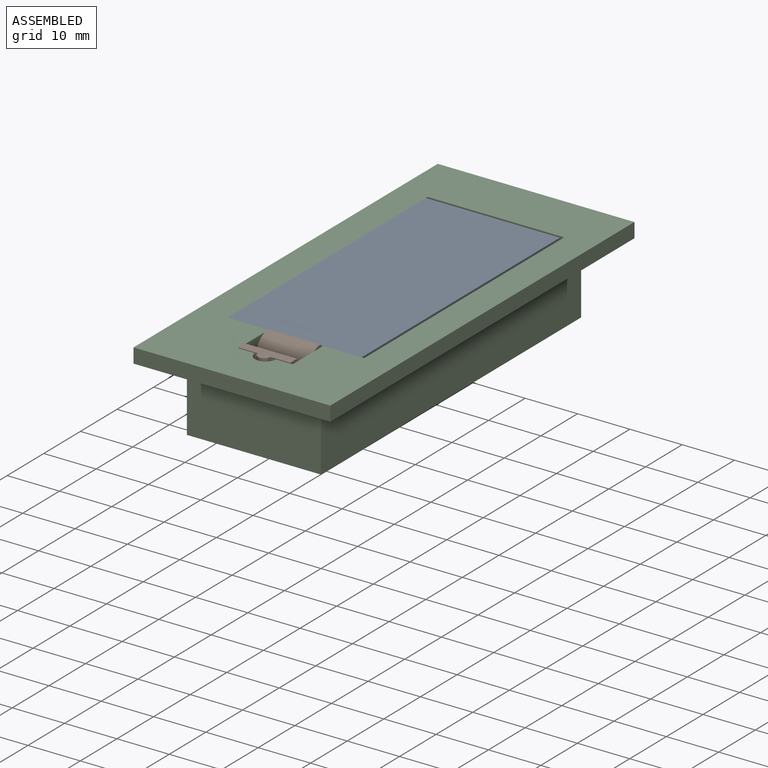
[diagram: assembled view]
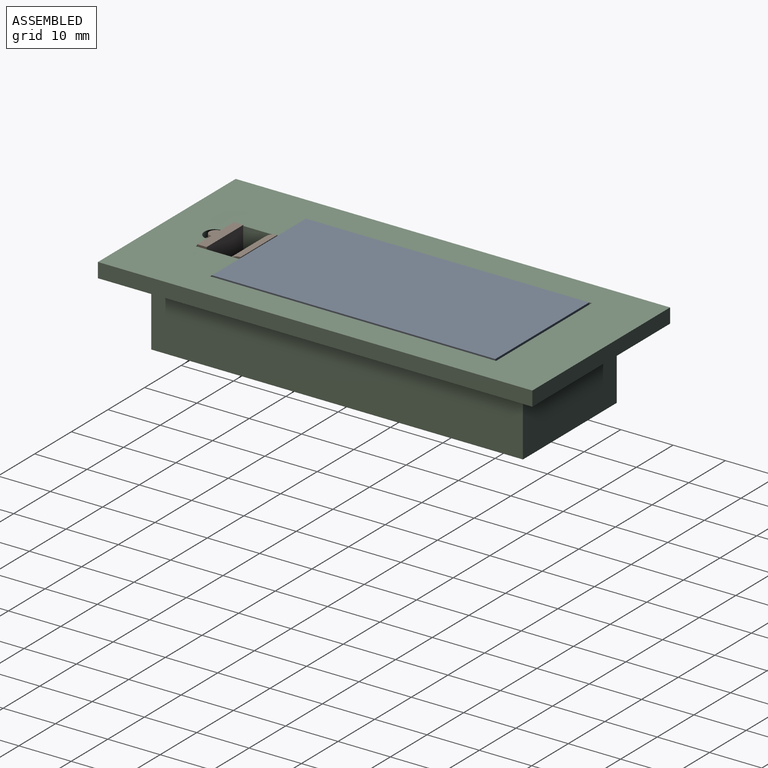
[diagram: assembled view, second angle]
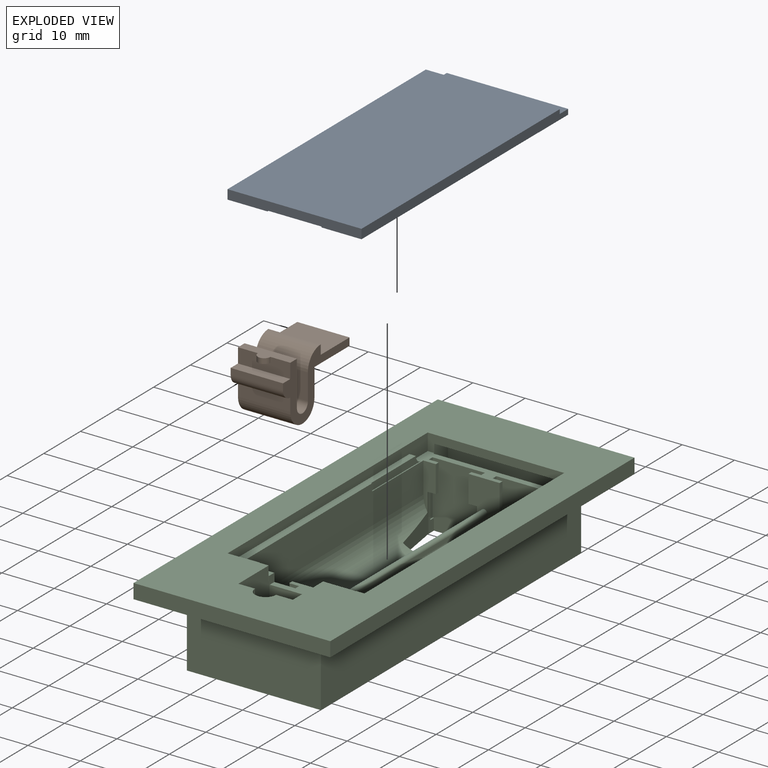
[diagram: exploded view]
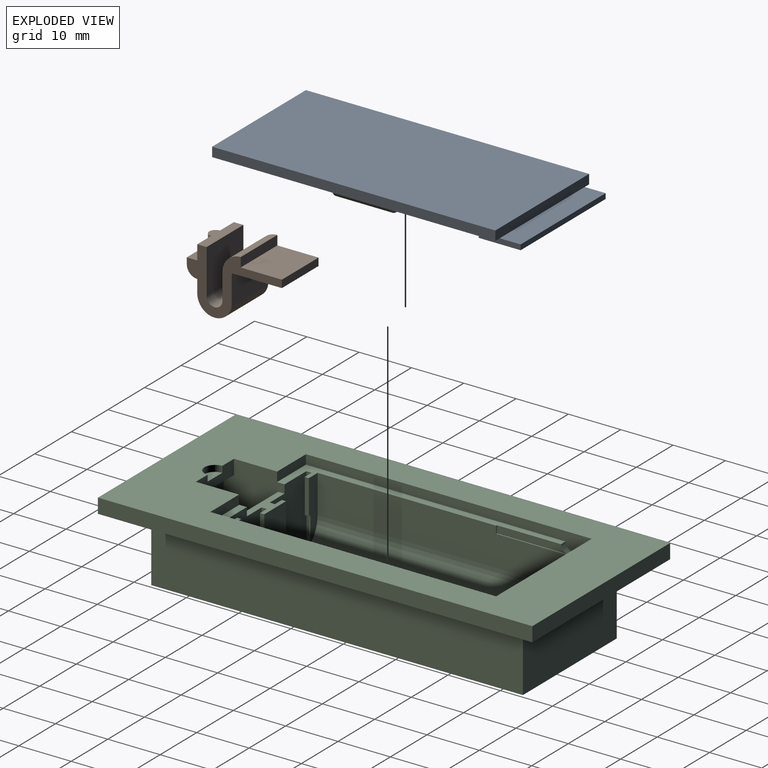
[diagram: exploded view, second angle]
ASSEMBLY  parts=3 mates=2
PART A: 26 faces, bbox 25.6x58.1x4.1 mm
  f0: plane 54.13x25.6mm, normal (0,0,1), area 996.4mm2, adj f1,f2,f3,f4,f6,f7,f9,f10
  f1: plane 25.6x1.8mm, normal (0,-1,0), area 44.5mm2, adj f0,f2,f4,f5,f23,f24,f25
  f2: plane 54.13x1.8mm, normal (-1,0,0), area 97.4mm2, adj f0,f1,f3,f5
  f3: plane 25.6x1.8mm, normal (0,1,0), area 46.1mm2, adj f0,f2,f4,f5,f16
  f4: plane 54.13x1.8mm, normal (1,0,0), area 97.4mm2, adj f0,f1,f3,f5
  f5: plane 54.13x25.6mm, normal (0,0,-1), area 1385.6mm2, adj f1,f2,f3,f4
  f6: cylinder r=2.2mm len=10.88mm, axis (0,1,0), area 38.8mm2, adj f0,f8,f9,f10
  f7: cylinder r=2.2mm len=10.88mm, axis (0,1,0), area 38.8mm2, adj f0,f8,f9,f10
  f8: cylinder r=5.7mm len=10.88mm, axis (0,1,0), area 62.4mm2, adj f6,f7,f9,f10
  f9: plane 9.91x2.31mm, normal (0,-1,0), area 18.1mm2, adj f0,f6,f7,f8
  f10: plane 9.91x2.31mm, normal (0,1,0), area 18.1mm2, adj f0,f6,f7,f8
  f11: cylinder r=2.2mm len=10.88mm, axis (0,1,0), area 38.8mm2, adj f0,f13,f14,f15
  f12: cylinder r=2.2mm len=10.88mm, axis (0,1,0), area 38.8mm2, adj f0,f13,f14,f15
  f13: cylinder r=5.7mm len=10.88mm, axis (0,1,0), area 62.4mm2, adj f11,f12,f14,f15
  f14: plane 9.91x2.31mm, normal (0,-1,0), area 18.1mm2, adj f0,f11,f12,f13
  f15: plane 9.91x2.31mm, normal (0,1,0), area 18.1mm2, adj f0,f11,f12,f13
  f16: plane 23.2x4mm, normal (0,0,-1), area 92.8mm2, adj f3,f17,f19,f20
  f17: plane 8x1mm, normal (-1,0,0), area 8mm2, adj f0,f16,f18,f20,f21
  f18: plane 23.2x8mm, normal (0,0,1), area 185.6mm2, adj f17,f19,f20,f21
  f19: plane 8x1mm, normal (1,0,0), area 8mm2, adj f0,f16,f18,f20,f21
  f20: plane 23.2x1mm, normal (0,1,0), area 23.2mm2, adj f16,f17,f18,f19
  f21: plane 23.2x1mm, normal (0,-1,0), area 23.2mm2, adj f0,f17,f18,f19
  f22: plane 10.3x0.15mm, normal (0,-1,0), area 1.5mm2, adj f0,f23,f24,f25
  f23: plane 7.88x0.15mm, normal (-1,0,0), area 1.2mm2, adj f0,f1,f22,f25
  f24: plane 7.88x0.15mm, normal (1,0,0), area 1.2mm2, adj f0,f1,f22,f25
  f25: plane 10.3x7.88mm, normal (0,0,1), area 81.1mm2, adj f1,f22,f23,f24
PART B: 22 faces, bbox 11.8x18.2x10 mm
  f0: plane 10x2.8mm, normal (0,-1,0), area 25.6mm2, adj f1,f2,f12,f13,f20,f21
  f1: plane 18.18x11.8mm, normal (0,0,-1), area 64mm2, adj f0,f3,f4,f5,f6,f7,f8,f9
  f2: plane 18.18x11.8mm, normal (0,0,1), area 64mm2, adj f0,f3,f4,f5,f6,f7,f8,f9
  f3: plane 10x0.01mm, normal (-1,0,0), area 0.1mm2, adj f1,f2,f4,f6
  f4: plane 10x1.8mm, normal (0,1,0), area 18mm2, adj f1,f2,f3,f17
  f5: cylinder r=1.7mm len=10mm, axis (0,0,1), area 2.5mm2, adj f1,f2,f7,f19
  f6: cylinder r=3.5mm len=10mm, axis (0,0,1), area 54.9mm2, adj f1,f2,f3,f16
  f7: plane 10x5mm, normal (0,1,0), area 50mm2, adj f1,f2,f5,f8
  f8: cylinder r=3.3mm len=10mm, axis (0,0,1), area 103.7mm2, adj f1,f2,f7,f9
  f9: plane 10x2.5mm, normal (0,-1,0), area 25mm2, adj f1,f2,f8,f10
  f10: cylinder r=2mm len=10mm, axis (0,0,1), area 31.4mm2, adj f1,f2,f9,f11
  f11: plane 10x1.2mm, normal (0,-1,0), area 12mm2, adj f1,f2,f10,f12
  f12: plane 10x2mm, normal (-1,0,0), area 20mm2, adj f0,f1,f2,f11
  f13: plane 10x3mm, normal (-1,0,0), area 20.3mm2, adj f0,f1,f2,f14,f20
  f14: plane 10x8.5mm, normal (0,1,0), area 85mm2, adj f1,f2,f13,f15
  f15: cylinder r=1.5mm len=10mm, axis (0,0,1), area 47.1mm2, adj f1,f2,f14,f16
  f16: plane 10x5mm, normal (0,-1,0), area 50mm2, adj f1,f2,f6,f15
  f17: plane 10x7.88mm, normal (-1,0,0), area 78.7mm2, adj f1,f2,f4,f18
  f18: plane 10x1.45mm, normal (0,1,0), area 14.5mm2, adj f1,f2,f17,f19
  f19: plane 10x9.56mm, normal (1,0,0), area 95.6mm2, adj f1,f2,f5,f18
  f20: cylinder r=1.2mm len=2.4mm, axis (-1,0,0), area 3.8mm2, adj f0,f13,f21
  f21: plane 2.4x1.2mm, normal (1,0,0), area 2.3mm2, adj f0,f20
PART C: 118 faces, bbox 37.6x83x15.8 mm
  f0: plane 13.65x1.4mm, normal (1,0,0), area 17.6mm2, adj f3,f91,f93,f113
  f1: plane 49.63x7.9mm, normal (0,0,1), area 81.3mm2, adj f2,f12,f20,f37,f49,f50,f51,f60
  f2: plane 13.65x1.4mm, normal (-1,0,0), area 17.6mm2, adj f1,f92,f93,f112
  f3: plane 49.63x7.9mm, normal (0,0,1), area 81.3mm2, adj f0,f20,f36,f53,f54,f55,f61,f88
  f4: plane 23.6x11.4mm, normal (0,1,0), area 269mm2, adj f5,f22,f93,f107
  f5: plane 13x4mm, normal (1,0,0), area 51.6mm2, adj f4,f6,f23,f42,f93,f107
  f6: plane 23.6x13mm, normal (0,-1,0), area 306.8mm2, adj f5,f22,f23,f107
  f7: plane 11.8x10.4mm, normal (0,-1,0), area 116.5mm2, adj f8,f13,f94,f95,f96,f98,f100,f106
  f8: plane 0.25x0.05mm, normal (0,0,-1), area 0mm2, adj f7,f95,f99,f100
  f9: plane 83.03x37.6mm, normal (0,0,-1), area 901mm2, adj f108,f109,f110,f111,f114,f115,f116,f117
  f10: plane 10.4x2mm, normal (0,0,-1), area 20.8mm2, adj f11,f98,f100,f104
  f11: plane 10.4x2.8mm, normal (0,1,0), area 24.3mm2, adj f10,f43,f98,f100,f101,f102
  f12: plane 7.85x1.8mm, normal (0,1,0), area 14.1mm2, adj f1,f43,f89,f98
  f13: plane 0.25x0.05mm, normal (0,0,-1), area 0mm2, adj f7,f94,f97,f98
  f14: plane 5x1mm, normal (1,0,0), area 5mm2, adj f15,f20,f69,f96
  f15: plane 5x1.88mm, normal (0,-1,0), area 9.4mm2, adj f14,f16,f69,f96
  f16: plane 5x0.8mm, normal (1,0,0), area 4mm2, adj f15,f17,f69,f96
  f17: plane 10.62x6.63mm, normal (0,1,0), area 41.5mm2, adj f16,f21,f45,f46,f56,f59,f65,f69
  f18: plane 5x1.88mm, normal (0,-1,0), area 9.4mm2, adj f19,f21,f69,f96
  f19: plane 5x1mm, normal (-1,0,0), area 5mm2, adj f18,f20,f69,f96
  f20: plane 22.25x14mm, normal (0,1,0), area 283.1mm2, adj f1,f3,f14,f19,f44,f52,f53,f60
  f21: plane 10.2x0.8mm, normal (-1,0,0), area 5.6mm2, adj f17,f18,f56,f69,f71,f96
  f22: plane 13x4mm, normal (-1,0,0), area 51.6mm2, adj f4,f6,f23,f42,f93,f107
  f23: plane 23.6x3.75mm, normal (0,0,-1), area 88.5mm2, adj f5,f6,f22,f42
  f24: plane 10.82x6.63mm, normal (0,-1,0), area 42.7mm2, adj f35,f38,f45,f46,f47,f59,f77,f80
  f25: plane 8.75x2.38mm, normal (0,-1,0), area 14.5mm2, adj f31,f36,f45,f78,f83,f93
  f26: plane 5.2x1.88mm, normal (0,1,0), area 9.8mm2, adj f27,f38,f82,f93
  f27: plane 5.2x1mm, normal (1,0,0), area 5.2mm2, adj f26,f39,f82,f93
  f28: plane 5.2x1mm, normal (-1,0,0), area 5.2mm2, adj f29,f39,f84,f93
  f29: plane 5.2x1.88mm, normal (0,1,0), area 9.8mm2, adj f28,f30,f84,f93
  f30: plane 5.2x0.8mm, normal (-1,0,0), area 4.2mm2, adj f29,f40,f84,f93
  f31: plane 5.2x0.8mm, normal (1,0,0), area 4.2mm2, adj f25,f32,f83,f93
  f32: plane 10.4x1.88mm, normal (0,1,0), area 11.1mm2, adj f31,f41,f48,f83,f85,f93
  f33: plane 5.2x1mm, normal (-1,0,0), area 5.2mm2, adj f34,f39,f82,f93
  f34: plane 5.2x1.88mm, normal (0,1,0), area 9.8mm2, adj f33,f35,f82,f93
  f35: plane 5.2x0.8mm, normal (-1,0,0), area 4.2mm2, adj f24,f34,f82,f93
  f36: plane 48.13x7.3mm, normal (1,0,0), area 331.7mm2, adj f3,f25,f45,f61,f91,f93
  f37: plane 48.13x7.3mm, normal (-1,0,0), area 331.7mm2, adj f1,f40,f46,f49,f92,f93
  f38: plane 10.4x0.8mm, normal (1,0,0), area 5.7mm2, adj f24,f26,f47,f81,f82,f93
  f39: plane 22.25x12.6mm, normal (0,-1,0), area 268.1mm2, adj f27,f28,f33,f41,f44,f48,f82,f84
  f40: plane 10.1x2.38mm, normal (0,-1,0), area 19.4mm2, adj f30,f37,f46,f79,f84,f93
  f41: plane 10.4x1mm, normal (1,0,0), area 10.4mm2, adj f32,f39,f48,f93
  f42: plane 26.1x3.2mm, normal (0,-1,0), area 45.8mm2, adj f5,f22,f23,f43,f89,f90,f93
  f43: plane 83.03x37.6mm, normal (0,0,1), area 1603.9mm2, adj f11,f12,f42,f88,f89,f90,f98,f100
  f44: plane 71.03x25.6mm, normal (0,0,-1), area 1577.4mm2, adj f20,f39,f57,f58,f62,f63,f64,f65
  f45: cylinder r=5.5mm len=48.13mm, axis (0,-1,0), area 739mm2, adj f17,f24,f25,f36,f59,f61,f62,f67
  f46: cylinder r=5.5mm len=48.13mm, axis (0,-1,0), area 739mm2, adj f17,f24,f37,f40,f49,f59,f63,f64
  f47: plane 0.68x0.3mm, normal (0,0,1), area 0.2mm2, adj f24,f38,f80,f81
  f48: plane 1x0.25mm, normal (0,0,1), area 0.3mm2, adj f32,f39,f41,f85
  f49: plane 10.15x2.38mm, normal (0,1,0), area 17.8mm2, adj f1,f37,f46,f50,f64,f68
  f50: plane 6.6x0.8mm, normal (-1,0,0), area 5.3mm2, adj f1,f49,f51,f68
  f51: plane 11.8x1.88mm, normal (0,-1,0), area 13.7mm2, adj f1,f50,f52,f60,f66,f68
  f52: plane 1x0.25mm, normal (0,0,1), area 0.3mm2, adj f20,f51,f60,f66
  f53: plane 6.6x1mm, normal (1,0,0), area 6.6mm2, adj f3,f20,f54,f74
  f54: plane 6.6x1.88mm, normal (0,-1,0), area 12.4mm2, adj f3,f53,f55,f74
  f55: plane 6.6x0.8mm, normal (1,0,0), area 5.3mm2, adj f3,f54,f61,f74
  f56: plane 0.68x0.3mm, normal (0,0,1), area 0.2mm2, adj f17,f21,f70,f71
  f57: plane 71.03x11mm, normal (-1,0,0), area 781.3mm2, adj f44,f103,f105,f109
  f58: plane 71.03x11mm, normal (1,0,0), area 781.3mm2, adj f44,f103,f105,f110
  f59: cylinder r=0.6mm len=48.13mm, axis (0,-1,0), area 90.7mm2, adj f17,f24,f45,f46
  f60: plane 11.8x1mm, normal (-1,0,0), area 11.8mm2, adj f1,f20,f51,f52
  f61: plane 11.5x2.38mm, normal (0,1,0), area 22.7mm2, adj f3,f36,f45,f55,f67,f74
  f62: plane 6x2.5mm, normal (0,-1,0), area 9.1mm2, adj f44,f45,f67,f70
  f63: plane 6.59x2.3mm, normal (0,-1,0), area 10.2mm2, adj f44,f46,f64,f65
  f64: plane 9x7.4mm, normal (-0.99,-0.16,0), area 28.4mm2, adj f44,f46,f49,f63,f66,f68
  f65: plane 9x7.4mm, normal (0.99,-0.16,0), area 28.4mm2, adj f17,f44,f46,f63,f69,f71
  f66: plane 7.4x1.5mm, normal (-1,0,0), area 5.9mm2, adj f20,f44,f51,f52,f64,f68
  f67: plane 7.4x2.5mm, normal (1,0,0), area 7.7mm2, adj f44,f45,f61,f62,f73,f74
  f68: plane 1.63x0.8mm, normal (0,0,-1), area 1.3mm2, adj f49,f50,f51,f64,f66
  f69: plane 5.95x1.8mm, normal (0,0,-1), area 5.7mm2, adj f14,f15,f16,f17,f18,f19,f20,f21
  f70: plane 2.5x2.2mm, normal (-1,0,0), area 4.6mm2, adj f17,f44,f45,f56,f62,f71
  f71: plane 7.4x5mm, normal (0,-1,0), area 33.5mm2, adj f21,f44,f56,f65,f69,f70
  f72: plane 7.4x1.5mm, normal (1,0,0), area 11.1mm2, adj f20,f44,f73,f74
  f73: plane 7.4x1.5mm, normal (0,-1,0), area 11.1mm2, adj f44,f67,f72,f74
  f74: plane 1.93x1.8mm, normal (0,0,-1), area 1.1mm2, adj f20,f53,f54,f55,f61,f67,f72,f73
  f75: plane 6.59x2.3mm, normal (0,1,0), area 10.2mm2, adj f44,f45,f77,f78
  f76: plane 6x2.5mm, normal (0,1,0), area 9.1mm2, adj f44,f46,f79,f80
  f77: plane 9x7.4mm, normal (-0.99,0.16,0), area 28.4mm2, adj f24,f44,f45,f75,f81,f82
  f78: plane 9x7.4mm, normal (0.99,0.16,0), area 28.4mm2, adj f25,f44,f45,f75,f83,f85
  f79: plane 7.4x2.5mm, normal (-1,0,0), area 7.7mm2, adj f40,f44,f46,f76,f84,f87
  f80: plane 2.5x2.2mm, normal (1,0,0), area 4.6mm2, adj f24,f44,f46,f47,f76,f81
  f81: plane 7.4x5mm, normal (0,1,0), area 33.5mm2, adj f38,f44,f47,f77,f80,f82
  f82: plane 5.95x1.8mm, normal (0,0,-1), area 5.7mm2, adj f24,f26,f27,f33,f34,f35,f38,f39
  f83: plane 1.63x0.8mm, normal (0,0,-1), area 1.3mm2, adj f25,f31,f32,f78,f85
  f84: plane 1.93x1.8mm, normal (0,0,-1), area 1.1mm2, adj f28,f29,f30,f39,f40,f79,f86,f87
  f85: plane 7.4x1.5mm, normal (1,0,0), area 5.9mm2, adj f32,f39,f44,f48,f78,f83
  f86: plane 7.4x1.5mm, normal (-1,0,0), area 11.1mm2, adj f39,f44,f84,f87
  f87: plane 7.4x1.5mm, normal (0,1,0), area 11.1mm2, adj f44,f79,f84,f86
  f88: plane 7.85x1.8mm, normal (0,1,0), area 14.1mm2, adj f3,f43,f90,f100
  f89: plane 54.63x3.2mm, normal (-1,0,0), area 104.9mm2, adj f1,f12,f42,f43,f93,f112
  f90: plane 54.63x3.2mm, normal (1,0,0), area 104.9mm2, adj f3,f42,f43,f88,f93,f113
  f91: plane 1.4x0.2mm, normal (0,1,0), area 0.3mm2, adj f0,f3,f36,f93
  f92: plane 1.4x0.2mm, normal (0,1,0), area 0.3mm2, adj f1,f2,f37,f93
  f93: plane 26.1x17.25mm, normal (0,0,1), area 55.4mm2, adj f0,f2,f4,f5,f22,f24,f25,f26
  f94: plane 1.6x1.45mm, normal (-1,0,0), area 2.2mm2, adj f1,f7,f13,f20,f96,f97
  f95: plane 1.6x1.45mm, normal (1,0,0), area 2.2mm2, adj f3,f7,f8,f20,f96,f99
  f96: plane 10.3x3mm, normal (0,0,1), area 19.3mm2, adj f7,f14,f15,f16,f17,f18,f19,f20
  f97: plane 1x0.05mm, normal (0,-1,0), area 0.1mm2, adj f1,f13,f94,f98
  f98: plane 14.6x10.5mm, normal (-1,0,0), area 147mm2, adj f7,f10,f11,f12,f13,f43,f97,f104
  f99: plane 1x0.05mm, normal (0,-1,0), area 0mm2, adj f3,f8,f95,f100
  f100: plane 14.6x10.5mm, normal (1,0,0), area 147mm2, adj f7,f8,f10,f11,f43,f88,f99,f104
  f101: cylinder r=2mm len=4mm, axis (0,0,1), area 7.5mm2, adj f11,f43,f102
  f102: plane 4x2mm, normal (0,0,1), area 6.3mm2, adj f11,f101
  f103: plane 25.6x11mm, normal (0,-1,0), area 281.6mm2, adj f44,f57,f58,f111
  f104: plane 11.8x10.4mm, normal (0,1,0), area 122.7mm2, adj f10,f98,f100,f106
  f105: plane 25.6x11mm, normal (0,1,0), area 281.6mm2, adj f44,f57,f58,f108
  f106: plane 10.5x10.4mm, normal (0,0,1), area 109.2mm2, adj f7,f98,f100,f104
  f107: plane 23.6x4mm, normal (0,0,1), area 94.4mm2, adj f4,f5,f6,f22
  f108: cylinder r=2mm len=29.6mm, axis (1,0,0), area 85mm2, adj f9,f105,f109,f110
  f109: cylinder r=2mm len=75.03mm, axis (0,1,0), area 227.7mm2, adj f9,f57,f108,f111
  f110: cylinder r=2mm len=75.03mm, axis (0,-1,0), area 227.7mm2, adj f9,f58,f108,f111
  f111: cylinder r=2mm len=29.6mm, axis (-1,0,0), area 85mm2, adj f9,f103,f109,f110
  f112: cylinder r=1.4mm len=1.4mm, axis (1,0,0), area 2.7mm2, adj f1,f2,f89,f93
  f113: cylinder r=1.4mm len=1.4mm, axis (1,0,0), area 2.7mm2, adj f0,f3,f90,f93
  f114: plane 83.03x2.8mm, normal (1,0,0), area 232.5mm2, adj f9,f43,f115,f117
  f115: plane 37.6x2.8mm, normal (0,-1,0), area 105.3mm2, adj f9,f43,f114,f116
  f116: plane 83.03x2.8mm, normal (-1,0,0), area 232.5mm2, adj f9,f43,f115,f117
  f117: plane 37.6x2.8mm, normal (0,1,0), area 105.3mm2, adj f9,f43,f114,f116
PLACE A rot(axis=(0,1,0),180deg) t=(-14.56,45.94,8.89)mm
PLACE B rot(axis=(0,1,0),90deg) t=(-6.26,-36.76,-36.78)mm
PLACE C t=(11.79,-35.44,-6.91)mm fixed
MATE fastened A.f0 <-> C.f3  axis (0,0,-1) through (-14.06,-23.99,7.09)mm
MATE fastened B.f17 <-> A.f25  axis (0,0,1) through (-1.26,-20.05,7.24)mm
